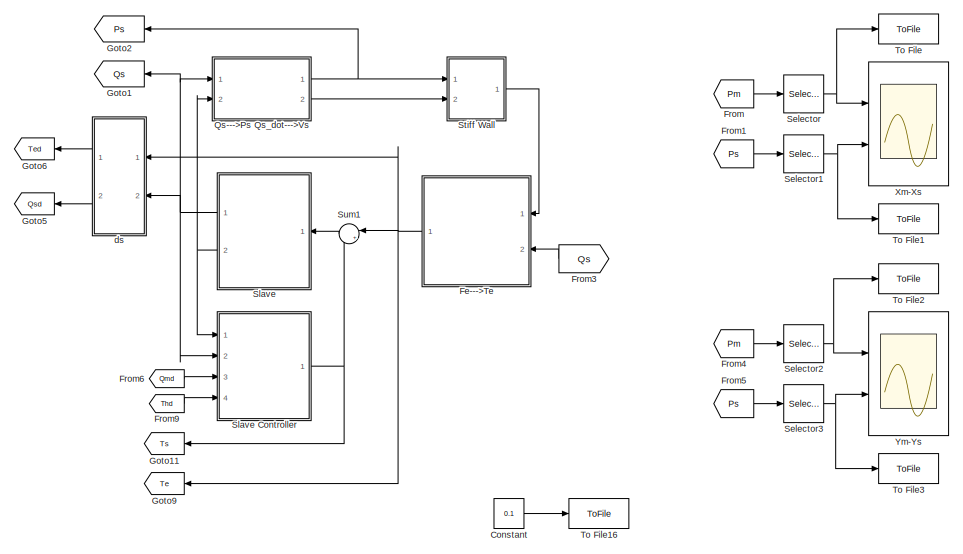
[diagram: root canvas - part 1/3, center side, full height]
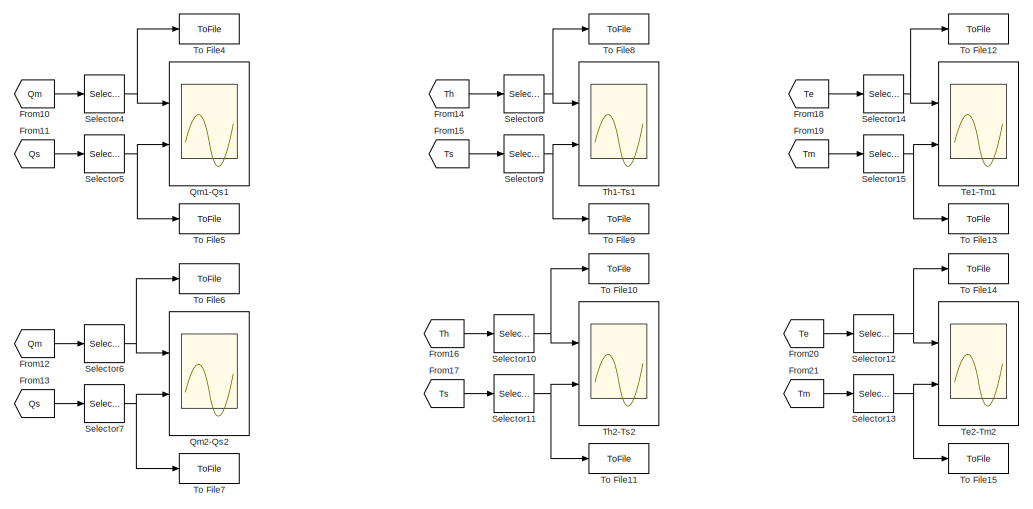
[diagram: root canvas - part 2/3, right side, full height]
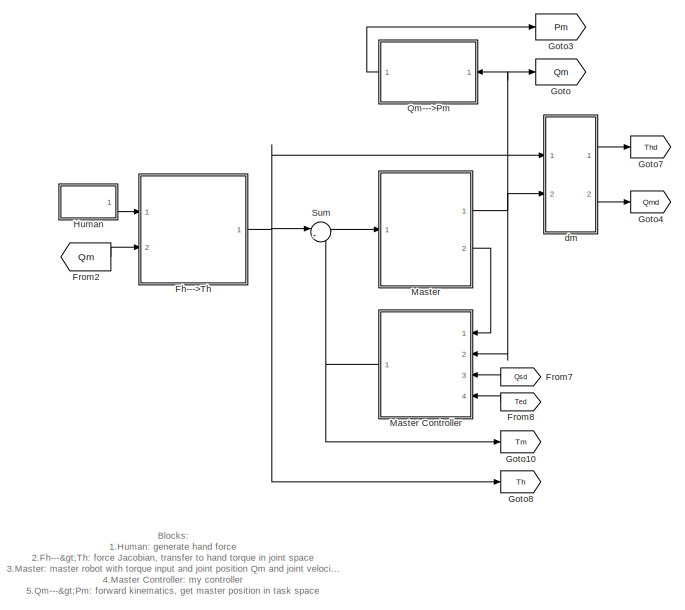
[diagram: root canvas - part 3/3, left side, full height]
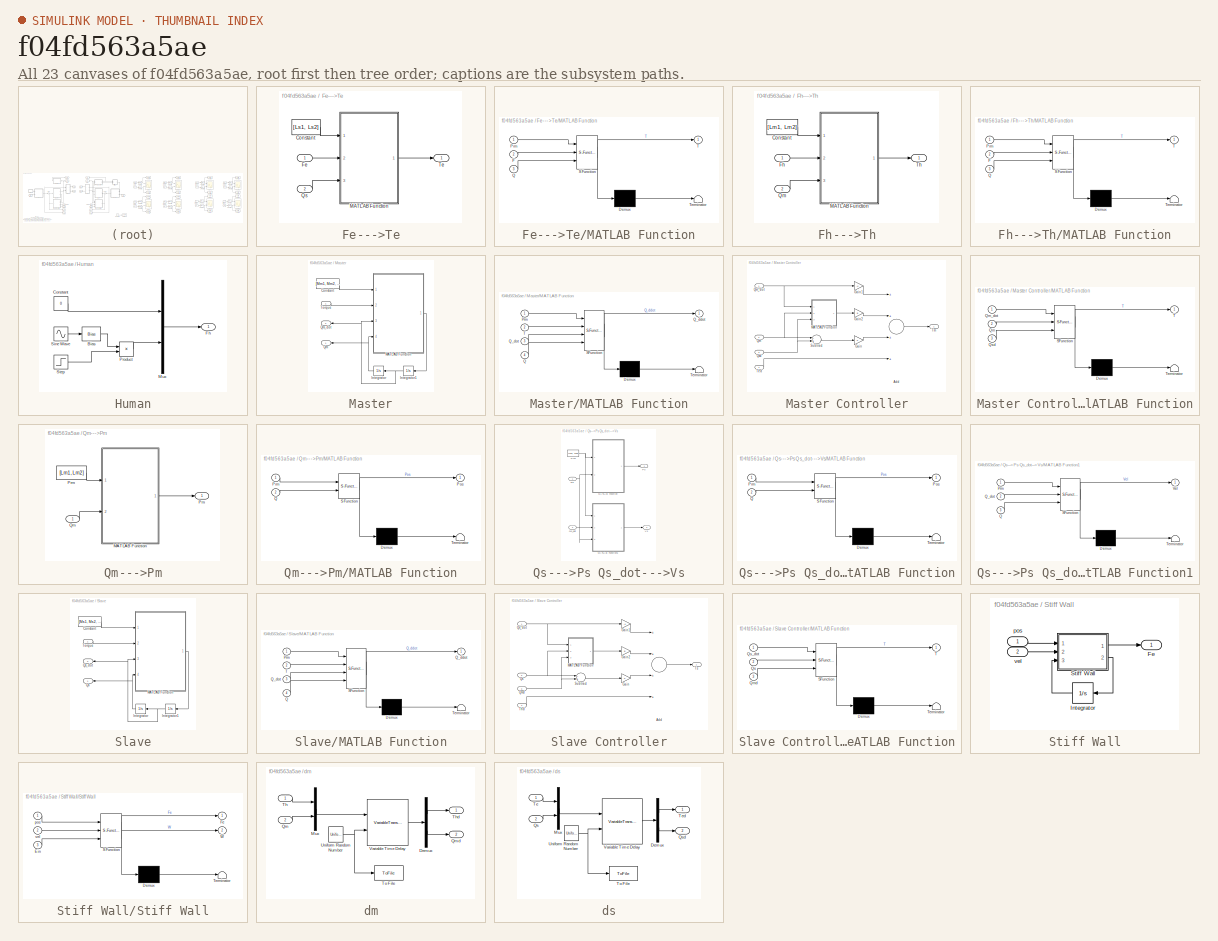
[diagram: thumbnail index - all 23 canvases of the model, root first then tree order]
MODEL slx_f04fd563a5ae
KIND model
CONFIG AbsTol = auto
CONFIG FixedStep = auto
CONFIG MaxStep = auto
CONFIG MinStep = auto
CONFIG RelTol = 1e-3
CONFIG SampleTimeConstraint = Unconstrained
CONFIG Solver = VariableStepAuto
CONFIG SolverMode = Auto
CONFIG SolverName = VariableStepAuto
CONFIG StartTime = 0.0
CONFIG StopTime = 100
BLOCK [Constant] Constant
  Value = 0.1
BLOCK [SubSystem] Fe--->Te
  Ports = [2, 1]
  RequestExecContextInheritance = off
  Variant = off
BLOCK [Constant] Fe--->Te/Constant
  Value = [Ls1, Ls2]
BLOCK [Inport] Fe--->Te/Fe
  IconDisplay = Port number
BLOCK [SubSystem] Fe--->Te/MATLAB Function
  ErrorFcn = Stateflow.Translate.translate
  PermitHierarchicalResolution = ExplicitOnly
  Ports = [3, 1]
  RequestExecContextInheritance = off
  SFBlockType = MATLAB Function
  TreatAsAtomicUnit = on
  Variant = off
BLOCK [Demux] Fe--->Te/MATLAB Function/ Demux 
  Outputs = 1
  Ports = [1, 1]
BLOCK [S-Function] Fe--->Te/MATLAB Function/ SFunction 
  EnableBusSupport = on
  FunctionName = sf_sfun
  PortCounts = [3 2]
  Ports = [3, 2]
  SFunctionDeploymentMode = off
  Tag = Stateflow S-Function P4_Like 7
BLOCK [Terminator] Fe--->Te/MATLAB Function/ Terminator 
BLOCK [Inport] Fe--->Te/MATLAB Function/F
  IconDisplay = Port number
  Port = 2
BLOCK [Inport] Fe--->Te/MATLAB Function/Prm
  IconDisplay = Port number
BLOCK [Inport] Fe--->Te/MATLAB Function/Q
  IconDisplay = Port number
  Port = 3
BLOCK [Outport] Fe--->Te/MATLAB Function/T
  IconDisplay = Port number
BLOCK [Inport] Fe--->Te/Qs
  IconDisplay = Port number
  Port = 2
BLOCK [Outport] Fe--->Te/Te
  IconDisplay = Port number
BLOCK [SubSystem] Fh--->Th
  Ports = [2, 1]
  RequestExecContextInheritance = off
  Variant = off
BLOCK [Constant] Fh--->Th/Constant
  Value = [Lm1, Lm2]
BLOCK [Inport] Fh--->Th/Fh
  IconDisplay = Port number
BLOCK [SubSystem] Fh--->Th/MATLAB Function
  ErrorFcn = Stateflow.Translate.translate
  PermitHierarchicalResolution = ExplicitOnly
  Ports = [3, 1]
  RequestExecContextInheritance = off
  SFBlockType = MATLAB Function
  TreatAsAtomicUnit = on
  Variant = off
BLOCK [Demux] Fh--->Th/MATLAB Function/ Demux 
  Outputs = 1
  Ports = [1, 1]
BLOCK [S-Function] Fh--->Th/MATLAB Function/ SFunction 
  EnableBusSupport = on
  FunctionName = sf_sfun
  PortCounts = [3 2]
  Ports = [3, 2]
  SFunctionDeploymentMode = off
  Tag = Stateflow S-Function P4_Like 6
BLOCK [Terminator] Fh--->Th/MATLAB Function/ Terminator 
BLOCK [Inport] Fh--->Th/MATLAB Function/F
  IconDisplay = Port number
  Port = 2
BLOCK [Inport] Fh--->Th/MATLAB Function/Prm
  IconDisplay = Port number
BLOCK [Inport] Fh--->Th/MATLAB Function/Q
  IconDisplay = Port number
  Port = 3
BLOCK [Outport] Fh--->Th/MATLAB Function/T
  IconDisplay = Port number
BLOCK [Inport] Fh--->Th/Qm
  IconDisplay = Port number
  Port = 2
BLOCK [Outport] Fh--->Th/Th
  IconDisplay = Port number
BLOCK [From] From
  GotoTag = Pm
BLOCK [From] From1
  GotoTag = Ps
BLOCK [From] From10
  GotoTag = Qm
BLOCK [From] From11
  GotoTag = Qs
BLOCK [From] From12
  GotoTag = Qm
BLOCK [From] From13
  GotoTag = Qs
BLOCK [From] From14
  GotoTag = Th
BLOCK [From] From15
  GotoTag = Ts
BLOCK [From] From16
  GotoTag = Th
BLOCK [From] From17
  GotoTag = Ts
BLOCK [From] From18
  GotoTag = Te
BLOCK [From] From19
  GotoTag = Tm
BLOCK [From] From2
  GotoTag = Qm
BLOCK [From] From20
  GotoTag = Te
BLOCK [From] From21
  GotoTag = Tm
BLOCK [From] From3
  GotoTag = Qs
BLOCK [From] From4
  GotoTag = Pm
BLOCK [From] From5
  GotoTag = Ps
BLOCK [From] From6
  GotoTag = Qmd
BLOCK [From] From7
  GotoTag = Qsd
BLOCK [From] From8
  GotoTag = Ted
BLOCK [From] From9
  GotoTag = Thd
BLOCK [Goto] Goto
  GotoTag = Qm
BLOCK [Goto] Goto1
  GotoTag = Qs
BLOCK [Goto] Goto10
  GotoTag = Tm
BLOCK [Goto] Goto11
  GotoTag = Ts
BLOCK [Goto] Goto2
  GotoTag = Ps
BLOCK [Goto] Goto3
  GotoTag = Pm
BLOCK [Goto] Goto4
  GotoTag = Qmd
BLOCK [Goto] Goto5
  GotoTag = Qsd
BLOCK [Goto] Goto6
  GotoTag = Ted
BLOCK [Goto] Goto7
  GotoTag = Thd
BLOCK [Goto] Goto8
  GotoTag = Th
BLOCK [Goto] Goto9
  GotoTag = Te
BLOCK [SubSystem] Human
  Ports = [0, 1]
  RequestExecContextInheritance = off
  Variant = off
BLOCK [Bias] Human/Bias
  Bias = 0.5
  SaturateOnIntegerOverflow = off
BLOCK [Constant] Human/Constant
  Value = 0
BLOCK [Outport] Human/Fh
  IconDisplay = Port number
BLOCK [Mux] Human/Mux
  DisplayOption = bar
  Inputs = 2
  Ports = [2, 1]
BLOCK [Product] Human/Product
  InputSameDT = off
  OutDataTypeStr = Inherit: Inherit via internal rule
  Ports = [2, 1]
  RndMeth = Floor
  SaturateOnIntegerOverflow = off
BLOCK [Sin] Human/Sine Wave
  Frequency = pi/20
  Ports = [0, 1]
  SampleTime = 0
BLOCK [Step] Human/Step
  After = 0
  Before = 1
  SampleTime = 0
  Time = 100
BLOCK [SubSystem] Master
  Ports = [1, 2]
  RequestExecContextInheritance = off
  Variant = off
BLOCK [SubSystem] Master Controller
  Ports = [4, 1]
  RequestExecContextInheritance = off
  Variant = off
BLOCK [Sum] Master Controller/Add
  InputSameDT = off
  Inputs = ++++
  OutDataTypeStr = Inherit: Inherit via internal rule
  Ports = [4, 1]
  SaturateOnIntegerOverflow = off
BLOCK [Gain] Master Controller/Gain
  Gain = P
  Multiplication = Matrix(K*u) (u vector)
  OutDataTypeStr = Inherit: Inherit via internal rule
  ParamDataTypeStr = Inherit: Inherit via internal rule
  SaturateOnIntegerOverflow = off
BLOCK [Gain] Master Controller/Gain1
  Gain = -K
  Multiplication = Matrix(K*u) (u vector)
  OutDataTypeStr = Inherit: Inherit via internal rule
  ParamDataTypeStr = Inherit: Inherit via internal rule
  SaturateOnIntegerOverflow = off
BLOCK [Gain] Master Controller/Gain2
  Gain = B
  OutDataTypeStr = Inherit: Inherit via internal rule
  ParamDataTypeStr = Inherit: Inherit via internal rule
  SaturateOnIntegerOverflow = off
BLOCK [SubSystem] Master Controller/MATLAB Function
  ErrorFcn = Stateflow.Translate.translate
  PermitHierarchicalResolution = ExplicitOnly
  Ports = [3, 1]
  RequestExecContextInheritance = off
  SFBlockType = MATLAB Function
  TreatAsAtomicUnit = on
  Variant = off
BLOCK [Demux] Master Controller/MATLAB Function/ Demux 
  Outputs = 1
  Ports = [1, 1]
BLOCK [S-Function] Master Controller/MATLAB Function/ SFunction 
  EnableBusSupport = on
  FunctionName = sf_sfun
  PortCounts = [3 2]
  Ports = [3, 2]
  SFunctionDeploymentMode = off
  Tag = Stateflow S-Function P4_Like 9
BLOCK [Terminator] Master Controller/MATLAB Function/ Terminator 
BLOCK [Inport] Master Controller/MATLAB Function/Qm
  IconDisplay = Port number
  Port = 2
BLOCK [Inport] Master Controller/MATLAB Function/Qm_dot
  IconDisplay = Port number
BLOCK [Inport] Master Controller/MATLAB Function/Qsd
  IconDisplay = Port number
  Port = 3
BLOCK [Outport] Master Controller/MATLAB Function/T
  IconDisplay = Port number
BLOCK [Inport] Master Controller/Qm
  IconDisplay = Port number
  Port = 2
BLOCK [Inport] Master Controller/Qm_dot
  IconDisplay = Port number
BLOCK [Inport] Master Controller/Qsd
  IconDisplay = Port number
  Port = 3
BLOCK [Sum] Master Controller/Subtract
  InputSameDT = off
  Inputs = -+
  OutDataTypeStr = Inherit: Inherit via internal rule
  Ports = [2, 1]
  SaturateOnIntegerOverflow = off
BLOCK [Inport] Master Controller/Ted
  IconDisplay = Port number
  Port = 4
BLOCK [Outport] Master Controller/Tm
  IconDisplay = Port number
BLOCK [Constant] Master/Constant
  Value = [Mm1, Mm2, Lm1, Lm2]
BLOCK [Integrator] Master/Integrator
  InitialCondition = q0
  Ports = [1, 1]
BLOCK [Integrator] Master/Integrator1
  InitialCondition = v0
  Ports = [1, 1]
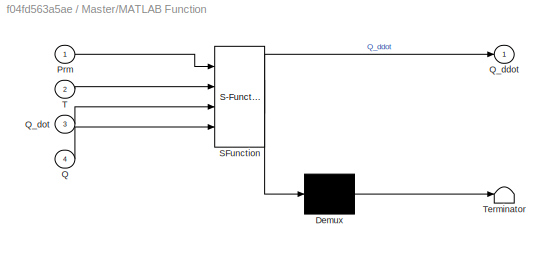
BLOCK [SubSystem] Master/MATLAB Function
  ErrorFcn = Stateflow.Translate.translate
  PermitHierarchicalResolution = ExplicitOnly
  Ports = [4, 1]
  RequestExecContextInheritance = off
  SFBlockType = MATLAB Function
  TreatAsAtomicUnit = on
  Variant = off
BLOCK [Demux] Master/MATLAB Function/ Demux 
  Outputs = 1
  Ports = [1, 1]
BLOCK [S-Function] Master/MATLAB Function/ SFunction 
  EnableBusSupport = on
  FunctionName = sf_sfun
  PortCounts = [4 2]
  Ports = [4, 2]
  SFunctionDeploymentMode = off
  Tag = Stateflow S-Function P4_Like 1
BLOCK [Terminator] Master/MATLAB Function/ Terminator 
BLOCK [Inport] Master/MATLAB Function/Prm
  IconDisplay = Port number
BLOCK [Inport] Master/MATLAB Function/Q
  IconDisplay = Port number
  Port = 4
BLOCK [Outport] Master/MATLAB Function/Q_ddot
  IconDisplay = Port number
BLOCK [Inport] Master/MATLAB Function/Q_dot
  IconDisplay = Port number
  Port = 3
BLOCK [Inport] Master/MATLAB Function/T
  IconDisplay = Port number
  Port = 2
BLOCK [Outport] Master/Qm
  IconDisplay = Port number
BLOCK [Outport] Master/Qm_dot
  IconDisplay = Port number
  Port = 2
BLOCK [Inport] Master/Torque
  IconDisplay = Port number
BLOCK [SubSystem] Qm--->Pm
  Ports = [1, 1]
  RequestExecContextInheritance = off
  Variant = off
BLOCK [SubSystem] Qm--->Pm/MATLAB Function
  ErrorFcn = Stateflow.Translate.translate
  PermitHierarchicalResolution = ExplicitOnly
  Ports = [2, 1]
  RequestExecContextInheritance = off
  SFBlockType = MATLAB Function
  TreatAsAtomicUnit = on
  Variant = off
BLOCK [Demux] Qm--->Pm/MATLAB Function/ Demux 
  Outputs = 1
  Ports = [1, 1]
BLOCK [S-Function] Qm--->Pm/MATLAB Function/ SFunction 
  EnableBusSupport = on
  FunctionName = sf_sfun
  PortCounts = [2 2]
  Ports = [2, 2]
  SFunctionDeploymentMode = off
  Tag = Stateflow S-Function P4_Like 4
BLOCK [Terminator] Qm--->Pm/MATLAB Function/ Terminator 
BLOCK [Outport] Qm--->Pm/MATLAB Function/Pos
  IconDisplay = Port number
BLOCK [Inport] Qm--->Pm/MATLAB Function/Prm
  IconDisplay = Port number
BLOCK [Inport] Qm--->Pm/MATLAB Function/Q
  IconDisplay = Port number
  Port = 2
BLOCK [Outport] Qm--->Pm/Pm
  IconDisplay = Port number
BLOCK [Constant] Qm--->Pm/Prm
  Value = [Lm1, Lm2]
BLOCK [Inport] Qm--->Pm/Qm
  IconDisplay = Port number
BLOCK [Scope] Qm1-Qs1
  NumInputPorts = 2
  Ports = [2]
  ScopeSpecificationString = Simulink.scopes.TimeScopeBlockCfg('CurrentConfiguration', extmgr.ConfigurationSet(extmgr.Configuration('Core','General UI',true),extmgr.Configuration('Core','Source UI',true),extmgr.Configuration('Sources','WiredSimulink',true,'DataLoggingVariableName','ScopeData2'),extmgr.Configuration('Visuals','Time Domain',true,'SerializedDisplays',{struct('MinYLimReal','-0.37027','MaxYLimReal','0.16885','YLab...<+1476ch>
BLOCK [Scope] Qm2-Qs2
  NumInputPorts = 2
  Ports = [2]
  ScopeSpecificationString = Simulink.scopes.TimeScopeBlockCfg('CurrentConfiguration', extmgr.ConfigurationSet(extmgr.Configuration('Core','General UI',true),extmgr.Configuration('Core','Source UI',true),extmgr.Configuration('Sources','WiredSimulink',true,'DataLoggingVariableName','ScopeData3'),extmgr.Configuration('Visuals','Time Domain',true,'SerializedDisplays',{struct('MinYLimReal','-0.1831','MaxYLimReal','0.08454','YLabe...<+1472ch>
BLOCK [SubSystem] Qs--->Ps Qs_dot--->Vs
  Ports = [2, 2]
  RequestExecContextInheritance = off
  Variant = off
BLOCK [SubSystem] Qs--->Ps Qs_dot--->Vs/MATLAB Function
  ErrorFcn = Stateflow.Translate.translate
  PermitHierarchicalResolution = ExplicitOnly
  Ports = [2, 1]
  RequestExecContextInheritance = off
  SFBlockType = MATLAB Function
  TreatAsAtomicUnit = on
  Variant = off
BLOCK [Demux] Qs--->Ps Qs_dot--->Vs/MATLAB Function/ Demux 
  Outputs = 1
  Ports = [1, 1]
BLOCK [S-Function] Qs--->Ps Qs_dot--->Vs/MATLAB Function/ SFunction 
  EnableBusSupport = on
  FunctionName = sf_sfun
  PortCounts = [2 2]
  Ports = [2, 2]
  SFunctionDeploymentMode = off
  Tag = Stateflow S-Function P4_Like 5
BLOCK [Terminator] Qs--->Ps Qs_dot--->Vs/MATLAB Function/ Terminator 
BLOCK [Outport] Qs--->Ps Qs_dot--->Vs/MATLAB Function/Pos
  IconDisplay = Port number
BLOCK [Inport] Qs--->Ps Qs_dot--->Vs/MATLAB Function/Prm
  IconDisplay = Port number
BLOCK [Inport] Qs--->Ps Qs_dot--->Vs/MATLAB Function/Q
  IconDisplay = Port number
  Port = 2
BLOCK [SubSystem] Qs--->Ps Qs_dot--->Vs/MATLAB Function1
  ErrorFcn = Stateflow.Translate.translate
  PermitHierarchicalResolution = ExplicitOnly
  Ports = [3, 1]
  RequestExecContextInheritance = off
  SFBlockType = MATLAB Function
  TreatAsAtomicUnit = on
  Variant = off
BLOCK [Demux] Qs--->Ps Qs_dot--->Vs/MATLAB Function1/ Demux 
  Outputs = 1
  Ports = [1, 1]
BLOCK [S-Function] Qs--->Ps Qs_dot--->Vs/MATLAB Function1/ SFunction 
  EnableBusSupport = on
  FunctionName = sf_sfun
  PortCounts = [3 2]
  Ports = [3, 2]
  SFunctionDeploymentMode = off
  Tag = Stateflow S-Function P4_Like 10
BLOCK [Terminator] Qs--->Ps Qs_dot--->Vs/MATLAB Function1/ Terminator 
BLOCK [Inport] Qs--->Ps Qs_dot--->Vs/MATLAB Function1/Prm
  IconDisplay = Port number
BLOCK [Inport] Qs--->Ps Qs_dot--->Vs/MATLAB Function1/Q
  IconDisplay = Port number
  Port = 3
BLOCK [Inport] Qs--->Ps Qs_dot--->Vs/MATLAB Function1/Q_dot
  IconDisplay = Port number
  Port = 2
BLOCK [Outport] Qs--->Ps Qs_dot--->Vs/MATLAB Function1/Vel
  IconDisplay = Port number
BLOCK [Constant] Qs--->Ps Qs_dot--->Vs/Prm
  Value = [Ls1, Ls2]
BLOCK [Outport] Qs--->Ps Qs_dot--->Vs/Ps
  IconDisplay = Port number
BLOCK [Inport] Qs--->Ps Qs_dot--->Vs/Qs
  IconDisplay = Port number
BLOCK [Inport] Qs--->Ps Qs_dot--->Vs/Qs_dot
  IconDisplay = Port number
  Port = 2
BLOCK [Outport] Qs--->Ps Qs_dot--->Vs/Vs
  IconDisplay = Port number
  Port = 2
BLOCK [Selector] Selector
  IndexOptions = Index vector (dialog)
  Indices = [1]
  InputPortWidth = 2
  OutputSizes = 1
  Ports = [1, 1]
BLOCK [Selector] Selector1
  IndexOptions = Index vector (dialog)
  Indices = [1]
  InputPortWidth = 2
  OutputSizes = 1
  Ports = [1, 1]
BLOCK [Selector] Selector10
  IndexOptions = Index vector (dialog)
  Indices = [2]
  InputPortWidth = 2
  OutputSizes = 1
  Ports = [1, 1]
BLOCK [Selector] Selector11
  IndexOptions = Index vector (dialog)
  Indices = [2]
  InputPortWidth = 2
  OutputSizes = 1
  Ports = [1, 1]
BLOCK [Selector] Selector12
  IndexOptions = Index vector (dialog)
  Indices = [2]
  InputPortWidth = 2
  OutputSizes = 1
  Ports = [1, 1]
BLOCK [Selector] Selector13
  IndexOptions = Index vector (dialog)
  Indices = [2]
  InputPortWidth = 2
  OutputSizes = 1
  Ports = [1, 1]
BLOCK [Selector] Selector14
  IndexOptions = Index vector (dialog)
  Indices = [1]
  InputPortWidth = 2
  OutputSizes = 1
  Ports = [1, 1]
BLOCK [Selector] Selector15
  IndexOptions = Index vector (dialog)
  Indices = [1]
  InputPortWidth = 2
  OutputSizes = 1
  Ports = [1, 1]
BLOCK [Selector] Selector2
  IndexOptions = Index vector (dialog)
  Indices = [2]
  InputPortWidth = 2
  OutputSizes = 1
  Ports = [1, 1]
BLOCK [Selector] Selector3
  IndexOptions = Index vector (dialog)
  Indices = [2]
  InputPortWidth = 2
  OutputSizes = 1
  Ports = [1, 1]
BLOCK [Selector] Selector4
  IndexOptions = Index vector (dialog)
  Indices = [1]
  InputPortWidth = 2
  OutputSizes = 1
  Ports = [1, 1]
BLOCK [Selector] Selector5
  IndexOptions = Index vector (dialog)
  Indices = [1]
  InputPortWidth = 2
  OutputSizes = 1
  Ports = [1, 1]
BLOCK [Selector] Selector6
  IndexOptions = Index vector (dialog)
  Indices = [2]
  InputPortWidth = 2
  OutputSizes = 1
  Ports = [1, 1]
BLOCK [Selector] Selector7
  IndexOptions = Index vector (dialog)
  Indices = [2]
  InputPortWidth = 2
  OutputSizes = 1
  Ports = [1, 1]
BLOCK [Selector] Selector8
  IndexOptions = Index vector (dialog)
  Indices = [1]
  InputPortWidth = 2
  OutputSizes = 1
  Ports = [1, 1]
BLOCK [Selector] Selector9
  IndexOptions = Index vector (dialog)
  Indices = [1]
  InputPortWidth = 2
  OutputSizes = 1
  Ports = [1, 1]
BLOCK [SubSystem] Slave
  Ports = [1, 2]
  RequestExecContextInheritance = off
  Variant = off
BLOCK [SubSystem] Slave Controller
  Ports = [4, 1]
  RequestExecContextInheritance = off
  Variant = off
BLOCK [Sum] Slave Controller/Add
  InputSameDT = off
  Inputs = ++++
  OutDataTypeStr = Inherit: Inherit via internal rule
  Ports = [4, 1]
  SaturateOnIntegerOverflow = off
BLOCK [Gain] Slave Controller/Gain
  Gain = P
  Multiplication = Matrix(K*u) (u vector)
  OutDataTypeStr = Inherit: Inherit via internal rule
  ParamDataTypeStr = Inherit: Inherit via internal rule
  SaturateOnIntegerOverflow = off
BLOCK [Gain] Slave Controller/Gain1
  Gain = -K
  Multiplication = Matrix(K*u) (u vector)
  OutDataTypeStr = Inherit: Inherit via internal rule
  ParamDataTypeStr = Inherit: Inherit via internal rule
  SaturateOnIntegerOverflow = off
BLOCK [Gain] Slave Controller/Gain2
  Gain = B
  OutDataTypeStr = Inherit: Inherit via internal rule
  ParamDataTypeStr = Inherit: Inherit via internal rule
  SaturateOnIntegerOverflow = off
BLOCK [SubSystem] Slave Controller/MATLAB Function
  ErrorFcn = Stateflow.Translate.translate
  PermitHierarchicalResolution = ExplicitOnly
  Ports = [3, 1]
  RequestExecContextInheritance = off
  SFBlockType = MATLAB Function
  TreatAsAtomicUnit = on
  Variant = off
BLOCK [Demux] Slave Controller/MATLAB Function/ Demux 
  Outputs = 1
  Ports = [1, 1]
BLOCK [S-Function] Slave Controller/MATLAB Function/ SFunction 
  EnableBusSupport = on
  FunctionName = sf_sfun
  PortCounts = [3 2]
  Ports = [3, 2]
  SFunctionDeploymentMode = off
  Tag = Stateflow S-Function P4_Like 8
BLOCK [Terminator] Slave Controller/MATLAB Function/ Terminator 
BLOCK [Inport] Slave Controller/MATLAB Function/Qmd
  IconDisplay = Port number
  Port = 3
BLOCK [Inport] Slave Controller/MATLAB Function/Qs
  IconDisplay = Port number
  Port = 2
BLOCK [Inport] Slave Controller/MATLAB Function/Qs_dot
  IconDisplay = Port number
BLOCK [Outport] Slave Controller/MATLAB Function/T
  IconDisplay = Port number
BLOCK [Inport] Slave Controller/Qmd
  IconDisplay = Port number
  Port = 3
BLOCK [Inport] Slave Controller/Qs
  IconDisplay = Port number
  Port = 2
BLOCK [Inport] Slave Controller/Qs_dot
  IconDisplay = Port number
BLOCK [Sum] Slave Controller/Subtract
  InputSameDT = off
  Inputs = -+
  OutDataTypeStr = Inherit: Inherit via internal rule
  Ports = [2, 1]
  SaturateOnIntegerOverflow = off
BLOCK [Inport] Slave Controller/Thd
  IconDisplay = Port number
  Port = 4
BLOCK [Outport] Slave Controller/Ts
  IconDisplay = Port number
BLOCK [Constant] Slave/Constant
  Value = [Ms1, Ms2, Ls1, Ls2]
BLOCK [Integrator] Slave/Integrator
  InitialCondition = q0
  Ports = [1, 1]
BLOCK [Integrator] Slave/Integrator1
  InitialCondition = v0
  Ports = [1, 1]
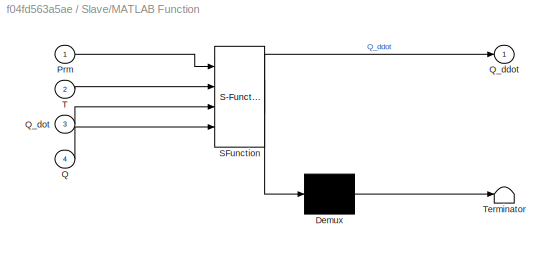
BLOCK [SubSystem] Slave/MATLAB Function
  ErrorFcn = Stateflow.Translate.translate
  PermitHierarchicalResolution = ExplicitOnly
  Ports = [4, 1]
  RequestExecContextInheritance = off
  SFBlockType = MATLAB Function
  TreatAsAtomicUnit = on
  Variant = off
BLOCK [Demux] Slave/MATLAB Function/ Demux 
  Outputs = 1
  Ports = [1, 1]
BLOCK [S-Function] Slave/MATLAB Function/ SFunction 
  EnableBusSupport = on
  FunctionName = sf_sfun
  PortCounts = [4 2]
  Ports = [4, 2]
  SFunctionDeploymentMode = off
  Tag = Stateflow S-Function P4_Like 3
BLOCK [Terminator] Slave/MATLAB Function/ Terminator 
BLOCK [Inport] Slave/MATLAB Function/Prm
  IconDisplay = Port number
BLOCK [Inport] Slave/MATLAB Function/Q
  IconDisplay = Port number
  Port = 4
BLOCK [Outport] Slave/MATLAB Function/Q_ddot
  IconDisplay = Port number
BLOCK [Inport] Slave/MATLAB Function/Q_dot
  IconDisplay = Port number
  Port = 3
BLOCK [Inport] Slave/MATLAB Function/T
  IconDisplay = Port number
  Port = 2
BLOCK [Outport] Slave/Qs
  IconDisplay = Port number
BLOCK [Outport] Slave/Qs_dot
  IconDisplay = Port number
  Port = 2
BLOCK [Inport] Slave/Torque
  IconDisplay = Port number
BLOCK [SubSystem] Stiff Wall
  Ports = [2, 1]
  RequestExecContextInheritance = off
  Variant = off
BLOCK [Outport] Stiff Wall/Fe
  IconDisplay = Port number
BLOCK [Integrator] Stiff Wall/Integrator
  Ports = [1, 1]
BLOCK [SubSystem] Stiff Wall/Stiff Wall
  ErrorFcn = Stateflow.Translate.translate
  PermitHierarchicalResolution = ExplicitOnly
  Ports = [3, 2]
  RequestExecContextInheritance = off
  SFBlockType = MATLAB Function
  TreatAsAtomicUnit = on
  Variant = off
BLOCK [Demux] Stiff Wall/Stiff Wall/ Demux 
  Outputs = 1
  Ports = [1, 1]
BLOCK [S-Function] Stiff Wall/Stiff Wall/ SFunction 
  EnableBusSupport = on
  FunctionName = sf_sfun
  PortCounts = [3 3]
  Ports = [3, 3]
  SFunctionDeploymentMode = off
  Tag = Stateflow S-Function P4_Like 2
BLOCK [Terminator] Stiff Wall/Stiff Wall/ Terminator 
BLOCK [Inport] Stiff Wall/Stiff Wall/Ein
  IconDisplay = Port number
  Port = 3
BLOCK [Outport] Stiff Wall/Stiff Wall/Fe
  IconDisplay = Port number
BLOCK [Outport] Stiff Wall/Stiff Wall/W
  IconDisplay = Port number
  Port = 2
BLOCK [Inport] Stiff Wall/Stiff Wall/pos
  IconDisplay = Port number
BLOCK [Inport] Stiff Wall/Stiff Wall/vel
  IconDisplay = Port number
  Port = 2
BLOCK [Inport] Stiff Wall/pos
  IconDisplay = Port number
BLOCK [Inport] Stiff Wall/vel
  IconDisplay = Port number
  Port = 2
BLOCK [Sum] Sum
  IconShape = round
  InputSameDT = off
  Inputs = |++
  OutDataTypeStr = Inherit: Inherit via internal rule
  Ports = [2, 1]
  SaturateOnIntegerOverflow = off
BLOCK [Sum] Sum1
  IconShape = round
  InputSameDT = off
  Inputs = |++
  OutDataTypeStr = Inherit: Inherit via internal rule
  Ports = [2, 1]
  SaturateOnIntegerOverflow = off
BLOCK [Scope] Te1-Tm1
  NumInputPorts = 2
  Ports = [2]
  ScopeSpecificationString = Simulink.scopes.TimeScopeBlockCfg('CurrentConfiguration', extmgr.ConfigurationSet(extmgr.Configuration('Core','General UI',true),extmgr.Configuration('Core','Source UI',true),extmgr.Configuration('Sources','WiredSimulink',true,'DataLoggingVariableName','ScopeData6'),extmgr.Configuration('Visuals','Time Domain',true,'SerializedDisplays',{struct('MinYLimReal','-26.31205','MaxYLimReal','7.23972','YLa...<+1509ch>
BLOCK [Scope] Te2-Tm2
  NumInputPorts = 2
  Ports = [2]
  ScopeSpecificationString = Simulink.scopes.TimeScopeBlockCfg('CurrentConfiguration', extmgr.ConfigurationSet(extmgr.Configuration('Core','General UI',true),extmgr.Configuration('Core','Source UI',true),extmgr.Configuration('Sources','WiredSimulink',true,'DataLoggingVariableName','ScopeData7'),extmgr.Configuration('Visuals','Time Domain',true,'SerializedDisplays',{struct('MinYLimReal','-10.88693','MaxYLimReal','3.20876','YLa...<+1482ch>
BLOCK [Scope] Th1-Ts1
  NumInputPorts = 2
  Ports = [2]
  ScopeSpecificationString = Simulink.scopes.TimeScopeBlockCfg('CurrentConfiguration', extmgr.ConfigurationSet(extmgr.Configuration('Core','General UI',true),extmgr.Configuration('Core','Source UI',true),extmgr.Configuration('Sources','WiredSimulink',true,'DataLoggingVariableName','ScopeData4'),extmgr.Configuration('Visuals','Time Domain',true,'SerializedDisplays',{struct('MinYLimReal','-1.27645','MaxYLimReal','3.99443','YLab...<+1476ch>
BLOCK [Scope] Th2-Ts2
  NumInputPorts = 2
  Ports = [2]
  ScopeSpecificationString = Simulink.scopes.TimeScopeBlockCfg('CurrentConfiguration', extmgr.ConfigurationSet(extmgr.Configuration('Core','General UI',true),extmgr.Configuration('Core','Source UI',true),extmgr.Configuration('Sources','WiredSimulink',true,'DataLoggingVariableName','ScopeData5'),extmgr.Configuration('Visuals','Time Domain',true,'SerializedDisplays',{struct('MinYLimReal','-0.75323','MaxYLimReal','2.49488','YLab...<+1478ch>
BLOCK [ToFile] To File
  Filename = Xm.mat
  MatrixName = Xm
  Ports = [1]
  SaveFormat = Timeseries
BLOCK [ToFile] To File1
  Filename = Xs.mat
  MatrixName = Xs
  Ports = [1]
  SaveFormat = Timeseries
BLOCK [ToFile] To File10
  Filename = Th2.mat
  MatrixName = Th2
  Ports = [1]
  SaveFormat = Timeseries
BLOCK [ToFile] To File11
  Filename = Ts2.mat
  MatrixName = Ts2
  Ports = [1]
  SaveFormat = Timeseries
BLOCK [ToFile] To File12
  Filename = Te1.mat
  MatrixName = Te1
  Ports = [1]
  SaveFormat = Timeseries
BLOCK [ToFile] To File13
  Filename = Tm1.mat
  MatrixName = Tm1
  Ports = [1]
  SaveFormat = Timeseries
BLOCK [ToFile] To File14
  Filename = Te2.mat
  MatrixName = Te2
  Ports = [1]
  SaveFormat = Timeseries
BLOCK [ToFile] To File15
  Filename = Tm2.mat
  MatrixName = Tm2
  Ports = [1]
  SaveFormat = Timeseries
BLOCK [ToFile] To File16
  Filename = wall.mat
  MatrixName = wall
  Ports = [1]
  SaveFormat = Timeseries
BLOCK [ToFile] To File2
  Filename = Ym.mat
  MatrixName = Ym
  Ports = [1]
  SaveFormat = Timeseries
BLOCK [ToFile] To File3
  Filename = Ys.mat
  MatrixName = Ys
  Ports = [1]
  SaveFormat = Timeseries
BLOCK [ToFile] To File4
  Filename = Qm1.mat
  MatrixName = Qm1
  Ports = [1]
  SaveFormat = Timeseries
BLOCK [ToFile] To File5
  Filename = Qs1.mat
  MatrixName = Qs1
  Ports = [1]
  SaveFormat = Timeseries
BLOCK [ToFile] To File6
  Filename = Qm2.mat
  MatrixName = Qm2
  Ports = [1]
  SaveFormat = Timeseries
BLOCK [ToFile] To File7
  Filename = Qs2.mat
  MatrixName = Qs2
  Ports = [1]
  SaveFormat = Timeseries
BLOCK [ToFile] To File8
  Filename = Th1.mat
  MatrixName = Th1
  Ports = [1]
  SaveFormat = Timeseries
BLOCK [ToFile] To File9
  Filename = Ts1.mat
  MatrixName = Ts1
  Ports = [1]
  SaveFormat = Timeseries
BLOCK [Scope] Xm-Xs
  NumInputPorts = 2
  Ports = [2]
  ScopeSpecificationString = Simulink.scopes.TimeScopeBlockCfg('CurrentConfiguration', extmgr.ConfigurationSet(extmgr.Configuration('Core','General UI',true),extmgr.Configuration('Core','Source UI',true),extmgr.Configuration('Sources','WiredSimulink',true,'DataLoggingVariableName','ScopeData1'),extmgr.Configuration('Visuals','Time Domain',true,'SerializedDisplays',{struct('MinYLimReal','0.9104','MaxYLimReal','1.00996','YLabel...<+1469ch>
BLOCK [Scope] Ym-Ys
  NumInputPorts = 2
  Ports = [2]
  ScopeSpecificationString = Simulink.scopes.TimeScopeBlockCfg('CurrentConfiguration', extmgr.ConfigurationSet(extmgr.Configuration('Core','General UI',true),extmgr.Configuration('Core','Source UI',true),extmgr.Configuration('Sources','WiredSimulink',true),extmgr.Configuration('Visuals','Time Domain',true,'SerializedDisplays',{struct('MinYLimReal','-0.44898','MaxYLimReal','0.20884','YLabelReal','','MinYLimMag','0.00000','MaxY...<+1442ch>
BLOCK [SubSystem] dm
  Ports = [2, 2]
  RequestExecContextInheritance = off
  Variant = off
BLOCK [Demux] dm/Demux
  DisplayOption = bar
  Outputs = 2
  Ports = [1, 2]
BLOCK [Mux] dm/Mux
  DisplayOption = bar
  Inputs = 2
  Ports = [2, 1]
BLOCK [Inport] dm/Qm
  IconDisplay = Port number
  Port = 2
BLOCK [Outport] dm/Qmd
  IconDisplay = Port number
  Port = 2
BLOCK [Inport] dm/Th
  IconDisplay = Port number
BLOCK [Outport] dm/Thd
  IconDisplay = Port number
BLOCK [ToFile] dm/To File
  Filename = dm.mat
  MatrixName = dm
  Ports = [1]
  SaveFormat = Timeseries
BLOCK [UniformRandomNumber] dm/Uniform Random Number
  Maximum = Dm
  Minimum = 0
  SampleTime = 0.1
BLOCK [VariableTransportDelay] dm/Variable Time Delay
  MaximumDelay = Dm
  Ports = [2, 1]
BLOCK [SubSystem] ds
  Ports = [2, 2]
  RequestExecContextInheritance = off
  Variant = off
BLOCK [Demux] ds/Demux
  DisplayOption = bar
  Outputs = 2
  Ports = [1, 2]
BLOCK [Mux] ds/Mux
  DisplayOption = bar
  Inputs = 2
  Ports = [2, 1]
BLOCK [Inport] ds/Qs
  IconDisplay = Port number
  Port = 2
BLOCK [Outport] ds/Qsd
  IconDisplay = Port number
  Port = 2
BLOCK [Inport] ds/Te
  IconDisplay = Port number
BLOCK [Outport] ds/Ted
  IconDisplay = Port number
BLOCK [ToFile] ds/To File
  Filename = ds.mat
  MatrixName = ds
  Ports = [1]
  SaveFormat = Timeseries
BLOCK [UniformRandomNumber] ds/Uniform Random Number
  Maximum = Ds
  Minimum = 0
  SampleTime = 0.1
BLOCK [VariableTransportDelay] ds/Variable Time Delay
  MaximumDelay = Ds
  Ports = [2, 1]
ANNOTATION (root): Blocks: 1.Human: generate hand force 2.Fh--->Th: force Jacobian, transfer to hand torque in joint space 3.Master: master robot with torque input and joint position Qm and joint velocity Qm_dot outputs 4.Master Controller: my controller 5.Qm--->Pm: forward kinematics, get master position in task space 6.Qs--->Ps: forward kinematics, get slave position in task space Qs_dot--->Vs: velocity jacobian, ...<+296ch>
LINE Constant:1 -> To File16:1
LINE Fe--->Te/Constant:1 -> Fe--->Te/MATLAB Function:1
LINE Fe--->Te/Fe:1 -> Fe--->Te/MATLAB Function:2
LINE Fe--->Te/MATLAB Function:1 -> Fe--->Te/Te:1
LINE Fe--->Te/Qs:1 -> Fe--->Te/MATLAB Function:3
NET Fe--->Te:1 -> Goto9:1, Sum1:1, ds:1
LINE Fh--->Th/Constant:1 -> Fh--->Th/MATLAB Function:1
LINE Fh--->Th/Fh:1 -> Fh--->Th/MATLAB Function:2
LINE Fh--->Th/MATLAB Function:1 -> Fh--->Th/Th:1
LINE Fh--->Th/Qm:1 -> Fh--->Th/MATLAB Function:3
NET Fh--->Th:1 -> Goto8:1, Sum:1, dm:1
LINE From10:1 -> Selector4:1
LINE From11:1 -> Selector5:1
LINE From12:1 -> Selector6:1
LINE From13:1 -> Selector7:1
LINE From14:1 -> Selector8:1
LINE From15:1 -> Selector9:1
LINE From16:1 -> Selector10:1
LINE From17:1 -> Selector11:1
LINE From18:1 -> Selector14:1
LINE From19:1 -> Selector15:1
LINE From1:1 -> Selector1:1
LINE From20:1 -> Selector12:1
LINE From21:1 -> Selector13:1
LINE From2:1 -> Fh--->Th:2
LINE From3:1 -> Fe--->Te:2
LINE From4:1 -> Selector2:1
LINE From5:1 -> Selector3:1
LINE From6:1 -> Slave Controller:3
LINE From7:1 -> Master Controller:3
LINE From8:1 -> Master Controller:4
LINE From9:1 -> Slave Controller:4
LINE From:1 -> Selector:1
LINE Human/Bias:1 -> Human/Product:1
LINE Human/Constant:1 -> Human/Mux:1
LINE Human/Mux:1 -> Human/Fh:1
LINE Human/Product:1 -> Human/Mux:2
LINE Human/Sine Wave:1 -> Human/Bias:1
LINE Human/Step:1 -> Human/Product:2
LINE Human:1 -> Fh--->Th:1
LINE Master Controller/Add:1 -> Master Controller/Tm:1
LINE Master Controller/Gain1:1 -> Master Controller/Add:1
LINE Master Controller/Gain2:1 -> Master Controller/Add:2
LINE Master Controller/Gain:1 -> Master Controller/Add:3
LINE Master Controller/MATLAB Function:1 -> Master Controller/Gain2:1
NET Master Controller/Qm:1 -> Master Controller/MATLAB Function:2, Master Controller/Subtract:1
NET Master Controller/Qm_dot:1 -> Master Controller/Gain1:1, Master Controller/MATLAB Function:1
NET Master Controller/Qsd:1 -> Master Controller/MATLAB Function:3, Master Controller/Subtract:2
LINE Master Controller/Subtract:1 -> Master Controller/Gain:1
LINE Master Controller/Ted:1 -> Master Controller/Add:4
NET Master Controller:1 -> Goto10:1, Sum:2
LINE Master/Constant:1 -> Master/MATLAB Function:1
NET Master/Integrator1:1 -> Master/Integrator:1, Master/MATLAB Function:3, Master/Qm_dot:1
NET Master/Integrator:1 -> Master/MATLAB Function:4, Master/Qm:1
LINE Master/MATLAB Function:1 -> Master/Integrator1:1
LINE Master/Torque:1 -> Master/MATLAB Function:2
NET Master:1 -> Goto:1, Master Controller:2, Qm--->Pm:1, dm:2
LINE Master:2 -> Master Controller:1
LINE Qm--->Pm/MATLAB Function:1 -> Qm--->Pm/Pm:1
LINE Qm--->Pm/Prm:1 -> Qm--->Pm/MATLAB Function:1
LINE Qm--->Pm/Qm:1 -> Qm--->Pm/MATLAB Function:2
LINE Qm--->Pm:1 -> Goto3:1
LINE Qs--->Ps Qs_dot--->Vs/MATLAB Function1:1 -> Qs--->Ps Qs_dot--->Vs/Vs:1
LINE Qs--->Ps Qs_dot--->Vs/MATLAB Function:1 -> Qs--->Ps Qs_dot--->Vs/Ps:1
NET Qs--->Ps Qs_dot--->Vs/Prm:1 -> Qs--->Ps Qs_dot--->Vs/MATLAB Function1:1, Qs--->Ps Qs_dot--->Vs/MATLAB Function:1
NET Qs--->Ps Qs_dot--->Vs/Qs:1 -> Qs--->Ps Qs_dot--->Vs/MATLAB Function1:3, Qs--->Ps Qs_dot--->Vs/MATLAB Function:2
LINE Qs--->Ps Qs_dot--->Vs/Qs_dot:1 -> Qs--->Ps Qs_dot--->Vs/MATLAB Function1:2
NET Qs--->Ps Qs_dot--->Vs:1 -> Goto2:1, Stiff Wall:1
LINE Qs--->Ps Qs_dot--->Vs:2 -> Stiff Wall:2
NET Selector10:1 -> Th2-Ts2:1, To File10:1
NET Selector11:1 -> Th2-Ts2:2, To File11:1
NET Selector12:1 -> Te2-Tm2:1, To File14:1
NET Selector13:1 -> Te2-Tm2:2, To File15:1
NET Selector14:1 -> Te1-Tm1:1, To File12:1
NET Selector15:1 -> Te1-Tm1:2, To File13:1
NET Selector1:1 -> To File1:1, Xm-Xs:2
NET Selector2:1 -> To File2:1, Ym-Ys:1
NET Selector3:1 -> To File3:1, Ym-Ys:2
NET Selector4:1 -> Qm1-Qs1:1, To File4:1
NET Selector5:1 -> Qm1-Qs1:2, To File5:1
NET Selector6:1 -> Qm2-Qs2:1, To File6:1
NET Selector7:1 -> Qm2-Qs2:2, To File7:1
NET Selector8:1 -> Th1-Ts1:1, To File8:1
NET Selector9:1 -> Th1-Ts1:2, To File9:1
NET Selector:1 -> To File:1, Xm-Xs:1
LINE Slave Controller/Add:1 -> Slave Controller/Ts:1
LINE Slave Controller/Gain1:1 -> Slave Controller/Add:1
LINE Slave Controller/Gain2:1 -> Slave Controller/Add:2
LINE Slave Controller/Gain:1 -> Slave Controller/Add:3
LINE Slave Controller/MATLAB Function:1 -> Slave Controller/Gain2:1
NET Slave Controller/Qmd:1 -> Slave Controller/MATLAB Function:3, Slave Controller/Subtract:2
NET Slave Controller/Qs:1 -> Slave Controller/MATLAB Function:2, Slave Controller/Subtract:1
NET Slave Controller/Qs_dot:1 -> Slave Controller/Gain1:1, Slave Controller/MATLAB Function:1
LINE Slave Controller/Subtract:1 -> Slave Controller/Gain:1
LINE Slave Controller/Thd:1 -> Slave Controller/Add:4
NET Slave Controller:1 -> Goto11:1, Sum1:2
LINE Slave/Constant:1 -> Slave/MATLAB Function:1
NET Slave/Integrator1:1 -> Slave/Integrator:1, Slave/MATLAB Function:3, Slave/Qs_dot:1
NET Slave/Integrator:1 -> Slave/MATLAB Function:4, Slave/Qs:1
LINE Slave/MATLAB Function:1 -> Slave/Integrator1:1
LINE Slave/Torque:1 -> Slave/MATLAB Function:2
NET Slave:1 -> Goto1:1, Qs--->Ps Qs_dot--->Vs:1, Slave Controller:2, ds:2
NET Slave:2 -> Qs--->Ps Qs_dot--->Vs:2, Slave Controller:1
LINE Stiff Wall/Integrator:1 -> Stiff Wall/Stiff Wall:3
LINE Stiff Wall/Stiff Wall:1 -> Stiff Wall/Fe:1
LINE Stiff Wall/Stiff Wall:2 -> Stiff Wall/Integrator:1
LINE Stiff Wall/pos:1 -> Stiff Wall/Stiff Wall:1
LINE Stiff Wall/vel:1 -> Stiff Wall/Stiff Wall:2
LINE Stiff Wall:1 -> Fe--->Te:1
LINE Sum1:1 -> Slave:1
LINE Sum:1 -> Master:1
LINE dm/Demux:1 -> dm/Thd:1
LINE dm/Demux:2 -> dm/Qmd:1
LINE dm/Mux:1 -> dm/Variable Time Delay:1
LINE dm/Qm:1 -> dm/Mux:2
LINE dm/Th:1 -> dm/Mux:1
NET dm/Uniform Random Number:1 -> dm/To File:1, dm/Variable Time Delay:2
LINE dm/Variable Time Delay:1 -> dm/Demux:1
LINE dm:1 -> Goto7:1
LINE dm:2 -> Goto4:1
LINE ds/Demux:1 -> ds/Ted:1
LINE ds/Demux:2 -> ds/Qsd:1
LINE ds/Mux:1 -> ds/Variable Time Delay:1
LINE ds/Qs:1 -> ds/Mux:2
LINE ds/Te:1 -> ds/Mux:1
NET ds/Uniform Random Number:1 -> ds/To File:1, ds/Variable Time Delay:2
LINE ds/Variable Time Delay:1 -> ds/Demux:1
LINE ds:1 -> Goto6:1
LINE ds:2 -> Goto5:1
note: NET lines group one-source signal fan-out (src -> all destinations, sorted); 1:1 wires keep LINE
CHART Master/MATLAB Function states=1 transitions=1
  STATE_LABEL 'eML_blk_kernel()'
  STATE_LABEL 'SCRIPT:\nfunction Q_ddot  = RobotArm_2DOF(Prm, T, Q_dot, Q)\n%#codegen\ng = 9.8;\nm1 = Prm(1);\nm2 = Prm(2);\nl1 = Prm(3);\nl2 = Prm(4);\nq1 = Q(1);\nq2 = Q(2);\nq1_dot = Q_dot(1);\nq2_dot = Q_dot(2);\nM11 = m2*l2^2+(m1+m2)*l1^2+2*m2*l1*l2*cos(q2);\nM12 = m2*l2^2+m2*l1*l2*cos(q2);\nM21 = M12;\nM22 = m2*l2^2;\nM = [M11, M12; M21, M22];\nC11 = -2*m2*l1*l2*sin(q2)*q2_dot;\nC12 = -m2*l1*l2*sin(q2)*q2_dot;\nC21 = m2*l1*l...<+162ch>'
CHART Stiff Wall/Stiff Wall states=1 transitions=1
  STATE_LABEL 'eML_blk_kernel()'
  STATE_LABEL "SCRIPT:\nfunction [Fe, W]  = Envir(pos,vel,Ein)\n%#codegen\nkWall = 10000;\nbWall = 40;\nif pos(2)>=0.1\n    Fk=[0; -(pos(2)-0.1)*kWall];\n    %Fb = zeros(2,1);\n    if Ein<=0.5;\n        Fb=bWall*[0;vel(2)];\n    else\n        Fb=zeros(2,1);\n    end\n    %}\n    Fe=Fk+Fb;\n    \n    W=Fb'*vel;\nelse\n    Fe=zeros(2,1);\n    W=0;\nend"
CHART Slave/MATLAB Function states=1 transitions=1
  STATE_LABEL 'eML_blk_kernel()'
  STATE_LABEL 'SCRIPT:\nfunction Q_ddot  = RobotArm_2DOF(Prm, T, Q_dot, Q)\n%#codegen\ng = 9.8;\nm1 = Prm(1);\nm2 = Prm(2);\nl1 = Prm(3);\nl2 = Prm(4);\nq1 = Q(1);\nq2 = Q(2);\nq1_dot = Q_dot(1);\nq2_dot = Q_dot(2);\nM11 = m2*l2^2+(m1+m2)*l1^2+2*m2*l1*l2*cos(q2);\nM12 = m2*l2^2+m2*l1*l2*cos(q2);\nM21 = M12;\nM22 = m2*l2^2;\nM = [M11, M12; M21, M22];\nC11 = -2*m2*l1*l2*sin(q2)*q2_dot;\nC12 = -m2*l1*l2*sin(q2)*q2_dot;\nC21 = m2*l1*l...<+162ch>'
CHART Qm--->Pm/MATLAB Function states=1 transitions=1
  STATE_LABEL 'eML_blk_kernel()'
  STATE_LABEL 'SCRIPT:\nfunction Pos = ForwardKinematics(Prm, Q)\n%#codegen\nl1 = Prm(1);\nl2 = Prm(2);\nq1 = Q(1);\nq2 = Q(2);\nx = l1*cos(q1)+l2*cos(q1+q2);\ny = l1*sin(q1)+l2*sin(q1+q2);\nPos = [x; y];\n'
CHART Qs--->Ps
Qs_dot--->Vs/MATLAB Function states=1 transitions=1
  STATE_LABEL 'eML_blk_kernel()'
  STATE_LABEL 'SCRIPT:\nfunction Pos = ForwardKinematics(Prm, Q)\n%#codegen\nl1 = Prm(1);\nl2 = Prm(2);\nq1 = Q(1);\nq2 = Q(2);\nx = l1*cos(q1)+l2*cos(q1+q2);\ny = l1*sin(q1)+l2*sin(q1+q2);\nPos = [x; y];\n'
CHART Fh--->Th/MATLAB Function states=1 transitions=1
  STATE_LABEL 'eML_blk_kernel()'
  STATE_LABEL "SCRIPT:\nfunction T = Force_to_Torque(Prm, F, Q)\n%#codegen\nl1 = Prm(1);\nl2 = Prm(2);\nq1 = Q(1);\nq2 = Q(2);\nJ11 = -l1*sin(q1)-l2*sin(q1+q2);\nJ12 = -l2*sin(q1+q2);\nJ21 = l1*cos(q1)+l2*cos(q1+q2);\nJ22 = l2*cos(q1+q2);\nJ = [J11, J12; J21, J22];\nT = J'*F;"
CHART Fe--->Te/MATLAB Function states=1 transitions=1
  STATE_LABEL 'eML_blk_kernel()'
  STATE_LABEL "SCRIPT:\nfunction T = Force_to_Torque(Prm, F, Q)\n%#codegen\nl1 = Prm(1);\nl2 = Prm(2);\nq1 = Q(1);\nq2 = Q(2);\nJ11 = -l1*sin(q1)-l2*sin(q1+q2);\nJ12 = -l2*sin(q1+q2);\nJ21 = l1*cos(q1)+l2*cos(q1+q2);\nJ22 = l2*cos(q1+q2);\nJ = [J11, J12; J21, J22];\nT = J'*F;"
CHART Slave Controller/MATLAB Function states=1 transitions=1
  STATE_LABEL 'eML_blk_kernel()'
  STATE_LABEL "SCRIPT:\nfunction T = fcn(Qs_dot, Qs, Qmd)\n%#codegen\nif Qs_dot(1)~=0 && Qs_dot(2)~=0\n    T=-(0.5./Qs_dot)*((Qs-Qmd)'*(Qs-Qmd));\nelseif Qs_dot(1)==0 &&Qs_dot(2)==0\n    T=zeros(2,1);\nelseif Qs_dot(1)~=0 && Qs_dot(2)==0\n    T=-[1/Qs_dot(1);0]*((Qs-Qmd)'*(Qs-Qmd));\nelse\n    T=-[0;1/Qs_dot(2)]*((Qs-Qmd)'*(Qs-Qmd));\nend"
CHART Master Controller/MATLAB Function states=1 transitions=1
  STATE_LABEL 'eML_blk_kernel()'
  STATE_LABEL "SCRIPT:\nfunction T = fcn(Qm_dot, Qm, Qsd)\n%#codegen\nif Qm_dot(1)~=0 && Qm_dot(2)~=0\n    T=-(0.5./Qm_dot)*((Qm-Qsd)'*(Qm-Qsd));\nelseif Qm_dot(1)==0 && Qm_dot(2)==0\n    T=zeros(2,1);\nelseif Qm_dot(1)~=0 && Qm_dot(2)==0\n    T=-[1/Qm_dot(1);0]*((Qm-Qsd)'*(Qm-Qsd));\nelse\n    T=-[0;1/Qm_dot(2)]*((Qm-Qsd)'*(Qm-Qsd));\nend"
CHART Qs--->Ps
Qs_dot--->Vs/MATLAB Function1 states=1 transitions=1
  STATE_LABEL 'eML_blk_kernel()'
  STATE_LABEL 'SCRIPT:\nfunction Vel = Velocity_Jacobian(Prm, Q_dot, Q)\n%#codegen\nl1 = Prm(1);\nl2 = Prm(2);\nq1 = Q(1);\nq2 = Q(2);\nJ11 = -l1*sin(q1)-l2*sin(q1+q2);\nJ12 = -l2*sin(q1+q2);\nJ21 = l1*cos(q1)+l2*cos(q1+q2);\nJ22 = l2*cos(q1+q2);\nJ = [J11, J12; J21, J22];\nVel=J*Q_dot;'
